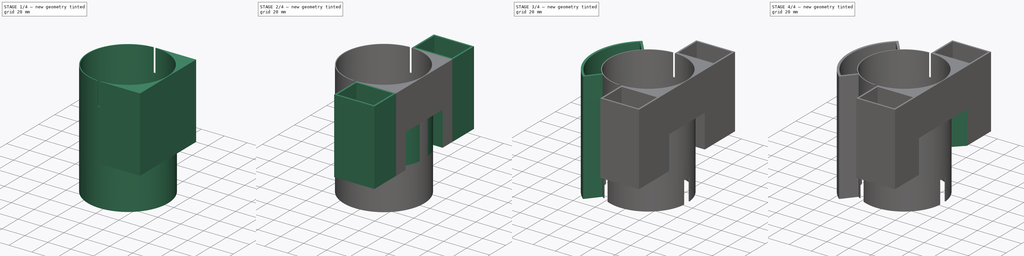
[diagram: build sequence overview — one tinted view per stage of 4, left to right]
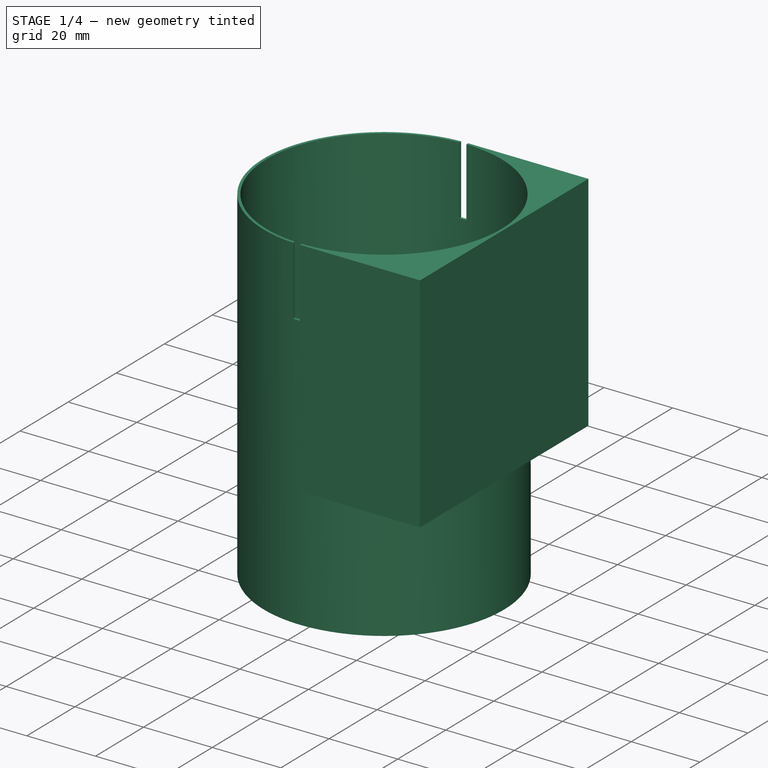
[diagram: stage 1 of 4 — iso view after this stage's code; geometry added in this stage tinted green]
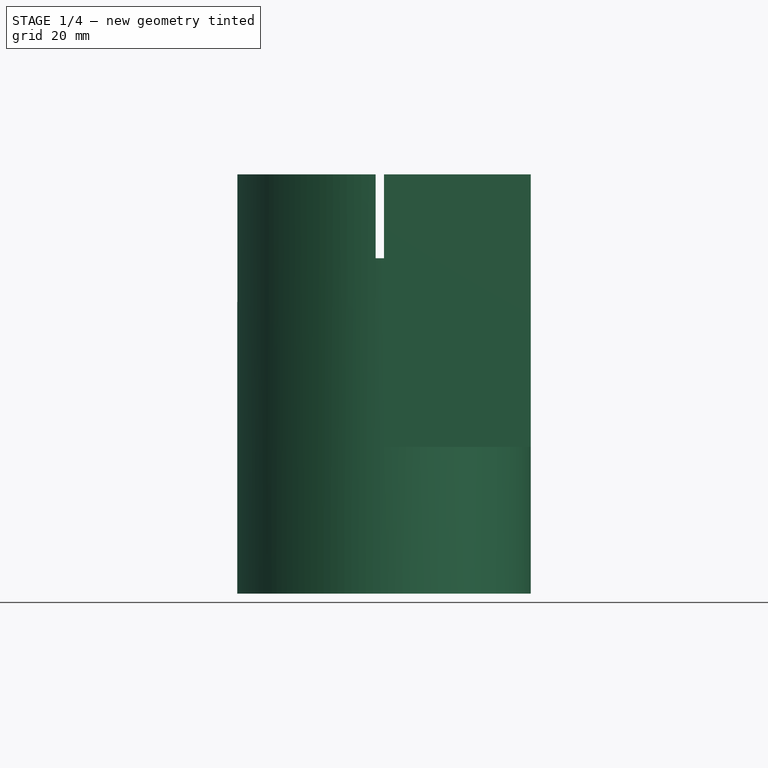
[diagram: stage 1 of 4 — front view after this stage's code; geometry added in this stage tinted green]
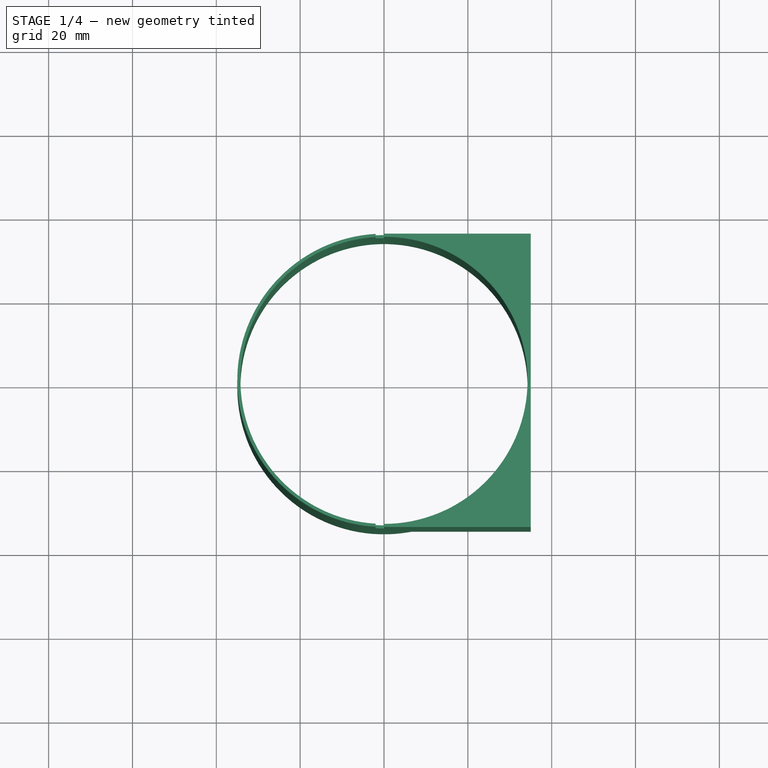
[diagram: stage 1 of 4 — top view after this stage's code; geometry added in this stage tinted green]
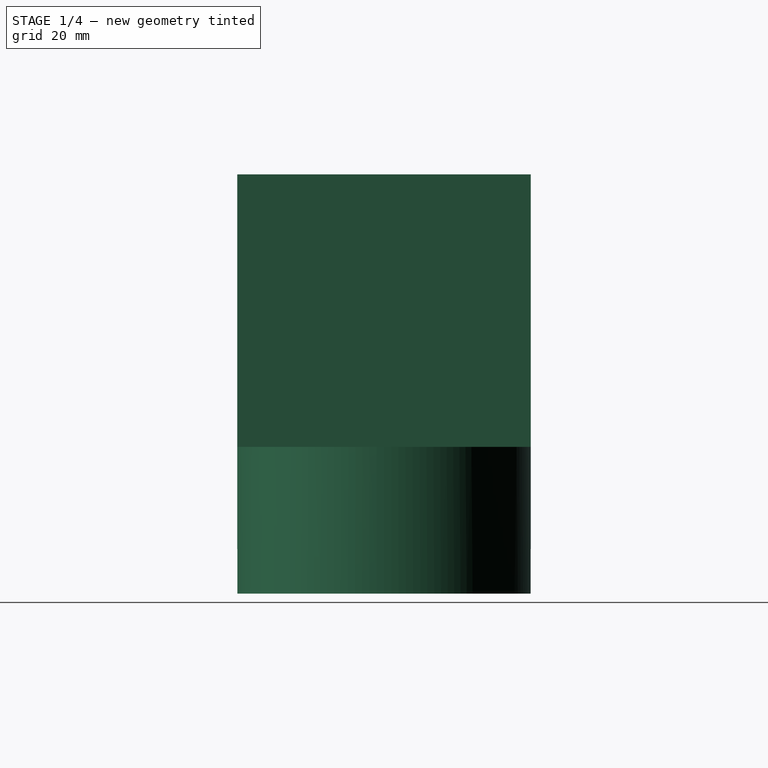
[diagram: stage 1 of 4 — right view after this stage's code; geometry added in this stage tinted green]
FCSTD DOCUMENT  (FreeCAD 0.20R29603 (Git))
Label: Frame
License: All rights reserved
LicenseURL: http://en.wikipedia.org/wiki/All_rights_reserved
objects: Sketcher::SketchObject×10, PartDesign::Pad×5, PartDesign::Pocket×5, PartDesign::Chamfer×2, PartDesign::Body×1
note: 35 computed .brp shape members not serialized (recipe doc carries the construction recipe); baked Part::Feature solids carry a one-line shape summary decoded from their .brp

FEATURE [Sketcher::SketchObject] Sketch
  FullyConstrained = true
  sketch-geometry (2):
    g0: Circle CenterX=0 CenterY=0 CenterZ=0 NormalX=0 NormalY=0 NormalZ=1 AngleXU=0 Radius=34.25
    g1: Circle CenterX=0 CenterY=0 CenterZ=0 NormalX=0 NormalY=0 NormalZ=1 AngleXU=0 Radius=35
  constraints (4):
    c: Coincident(g0,g-1)
    c: Diameter(g0) = 68.5
    c: Coincident(g1,g0)
    c: Diameter(g1) = 70
FEATURE [PartDesign::Pad] Pad  label="Cylinder"
  Direction = (0,0,1)
  Length = 100
  Length2 = 10
  Profile = -> Sketch
  ReferenceAxis = -> Sketch [N_Axis]
  Type = 0
FEATURE [Sketcher::SketchObject] Sketch002
  FullyConstrained = true
  MapMode = 5
  Placement = pos=(0,0,100) rot=(0,0,1;0rad)
  sketch-geometry (5):
    g0: LineSegment StartX=0 StartY=36 StartZ=0 EndX=-2 EndY=36 EndZ=0
    g1: LineSegment StartX=-2 StartY=36 StartZ=0 EndX=-2 EndY=-36 EndZ=0
    g2: LineSegment StartX=-2 StartY=-36 StartZ=0 EndX=0 EndY=-36 EndZ=0
    g3: LineSegment StartX=0 StartY=-36 StartZ=0 EndX=0 EndY=36 EndZ=0
    g4: GeomPoint X=0 Y=0 Z=0
  constraints (13):
    c: Coincident(g0,g1)
    c: Coincident(g1,g2)
    c: Coincident(g2,g3)
    c: Coincident(g3,g0)
    c: Horizontal(g0)
    c: Horizontal(g2)
    c: Vertical(g1)
    c: Vertical(g3)
    c: PointOnObject(g0,g-2)
    c: DistanceX(g0,g0) = 2
    c: DistanceY(g3,g3) = 72
    c: Symmetric(g2,g0,g4)
    c: DistanceY(g4,g-1) = 0
FEATURE [PartDesign::Pocket] Pocket  label="Attatcher"
  BaseFeature = -> Pad
  Direction = (0,0,-1)
  Length = 20
  Length2 = 5
  Profile = -> Sketch002
  ReferenceAxis = -> Sketch002 [N_Axis]
  Type = 0
FEATURE [Sketcher::SketchObject] Sketch003
  FullyConstrained = true
  MapMode = 5
  Placement = pos=(0,0,100) rot=(0,0,1;0rad)
  Support = -> [Pocket]
  sketch-geometry (4):
    g0: LineSegment StartX=-6.4e-15 StartY=-35 StartZ=0 EndX=35 EndY=-35 EndZ=0
    g1: LineSegment StartX=35 StartY=-35 StartZ=0 EndX=35 EndY=35 EndZ=0
    g2: LineSegment StartX=35 StartY=35 StartZ=0 EndX=1.42e-14 EndY=35 EndZ=0
    g3: ArcOfCircle CenterX=0 CenterY=0 CenterZ=0 NormalX=0 NormalY=0 NormalZ=1 AngleXU=0 Radius=35 StartAngle=4.71239 EndAngle=7.85398
  constraints (12):
    c: PointOnObject(g0,g-2)
    c: DistanceY(g0,g-1) = 35
    c: Horizontal(g0)
    c: DistanceX(g0,g0) = 35
    c: Coincident(g1,g0)
    c: Vertical(g1)
    c: DistanceY(g1,g1) = 70
    c: Coincident(g2,g1)
    c: PointOnObject(g2,g-2)
    c: Coincident(g3,g-1)
    c: Coincident(g3,g2)
    c: Coincident(g3,g0)
FEATURE [PartDesign::Pad] Pad001  label="FCMount"
  BaseFeature = -> Pocket
  Direction = (0,0,1)
  Length = 65
  Length2 = 10
  Profile = -> Sketch003
  ReferenceAxis = -> Sketch003 [N_Axis]
  Reversed = true
  Type = 0
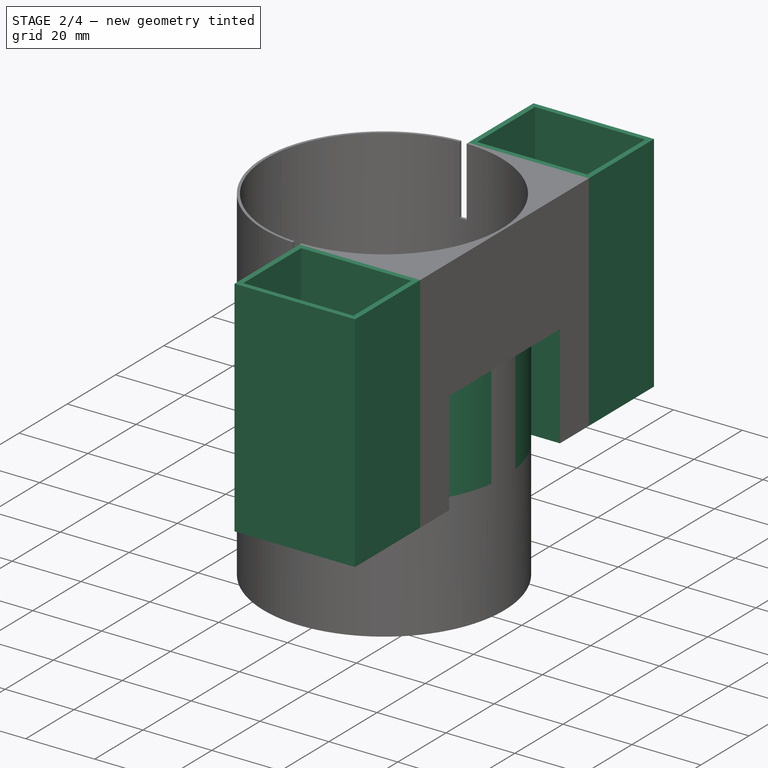
[diagram: stage 2 of 4 — iso view after this stage's code; geometry added in this stage tinted green]
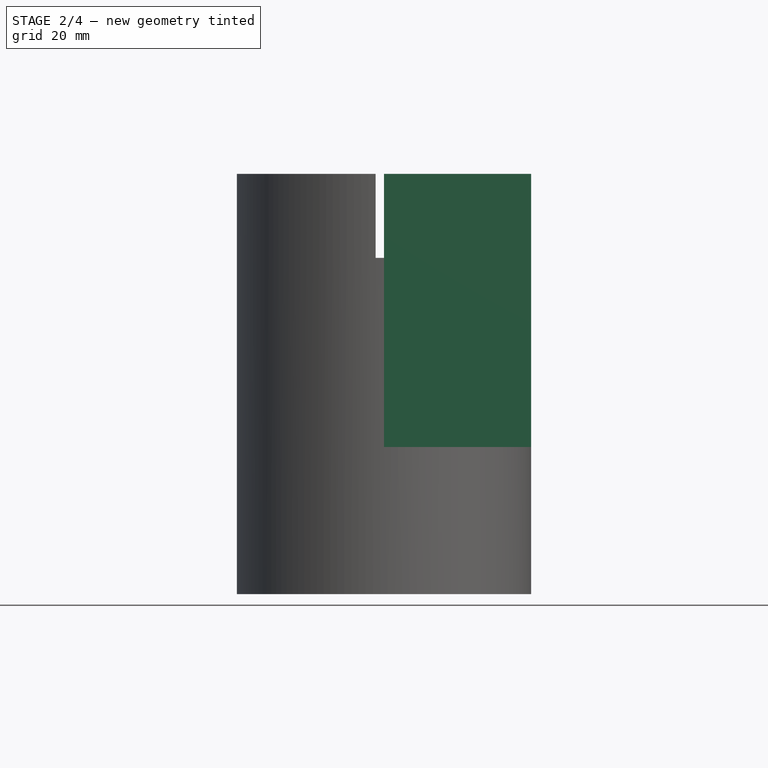
[diagram: stage 2 of 4 — front view after this stage's code; geometry added in this stage tinted green]
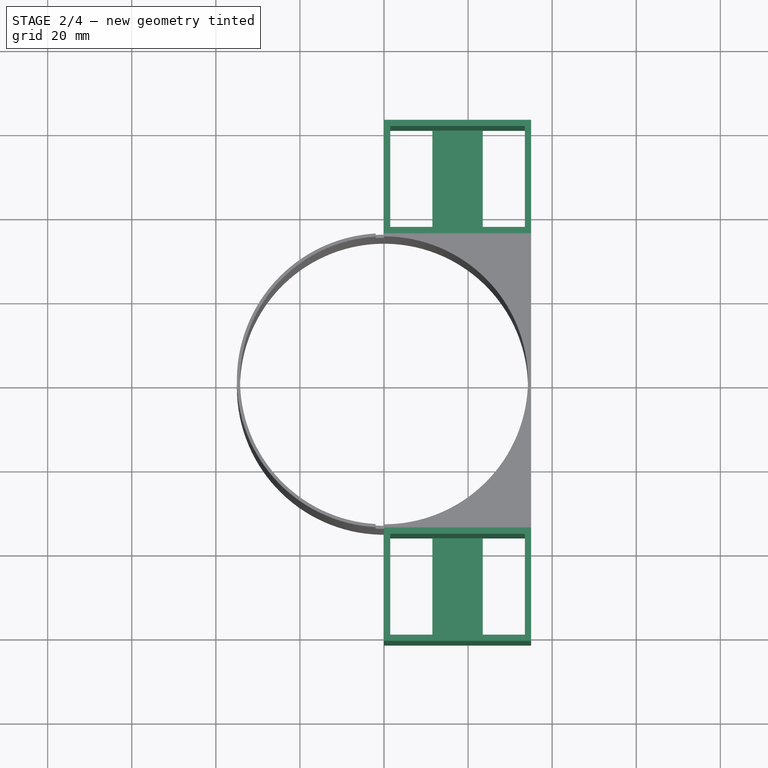
[diagram: stage 2 of 4 — top view after this stage's code; geometry added in this stage tinted green]
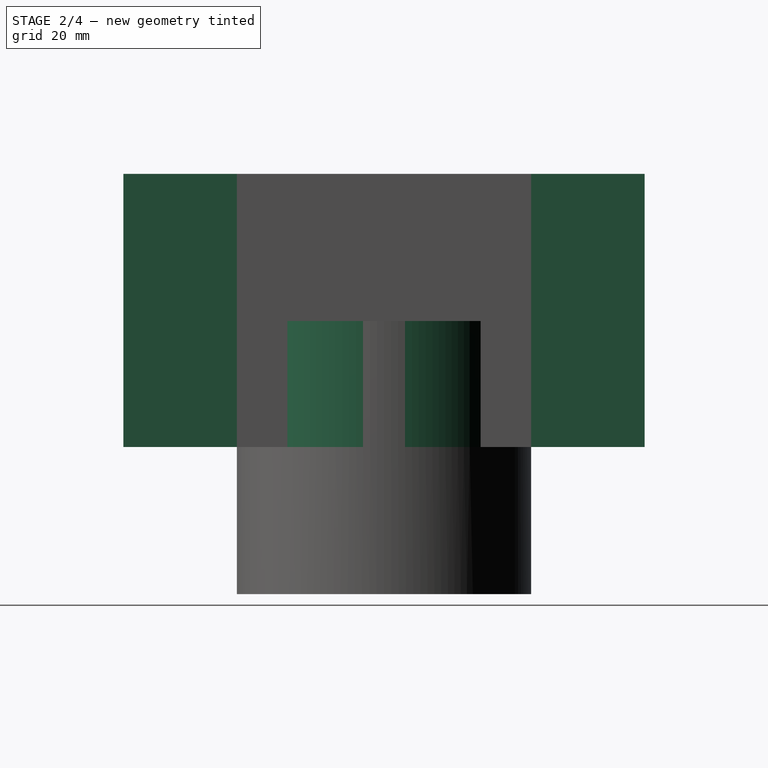
[diagram: stage 2 of 4 — right view after this stage's code; geometry added in this stage tinted green]
FEATURE [Sketcher::SketchObject] Sketch004
  FullyConstrained = false
  MapMode = 5
  Placement = pos=(0,0,35) rot=(1,0,0;3.14159rad)
  Support = -> [Pad001]
  sketch-geometry (4):
    g0: LineSegment StartX=35.0018 StartY=23 StartZ=0 EndX=35.0018 EndY=-23 EndZ=0
    g1: LineSegment StartX=35.0018 StartY=23 StartZ=0 EndX=26.3818 EndY=23 EndZ=0
    g2: LineSegment StartX=35.0018 StartY=-23 StartZ=0 EndX=26.3818 EndY=-23 EndZ=0
    g3: ArcOfCircle CenterX=0 CenterY=0 CenterZ=0 NormalX=0 NormalY=0 NormalZ=1 AngleXU=0 Radius=35 StartAngle=5.56616 EndAngle=7.00021
  constraints (10):
    c: Vertical(g0)
    c: DistanceY(g0,g0) = 46
    c: Coincident(g1,g0)
    c: Horizontal(g1)
    c: Coincident(g2,g0)
    c: Horizontal(g2)
    c: Distance(g-1,g1) = 35
    c: Coincident(g3,g-1)
    c: Coincident(g3,g1)
    c: Coincident(g3,g2)
FEATURE [PartDesign::Pocket] Pocket001  label="BATMount"
  BaseFeature = -> Pad001
  Direction = (0,0,1)
  Length = 30
  Length2 = 5
  Profile = -> Sketch004
  ReferenceAxis = -> Sketch004 [N_Axis]
  Type = 0
FEATURE [Sketcher::SketchObject] Sketch008
  FullyConstrained = false
  MapMode = 5
  Placement = pos=(0,0,0) rot=(1,0,0;3.14159rad)
  sketch-geometry (10):
    g0: LineSegment StartX=-22.4976 StartY=26.8116 StartZ=0 EndX=-32.1394 EndY=38.3022 EndZ=0
    g1: LineSegment StartX=-22.4976 StartY=-26.8116 StartZ=0 EndX=-32.1394 EndY=-38.3022 EndZ=0
    g2: ArcOfCircle CenterX=0 CenterY=0 CenterZ=0 NormalX=0 NormalY=0 NormalZ=1 AngleXU=0 Radius=50 StartAngle=2.26893 EndAngle=4.01426
    g3: GeomPoint X=-30.8538 Y=36.7701 Z=0
    g4: ArcOfCircle CenterX=0 CenterY=0 CenterZ=0 NormalX=0 NormalY=0 NormalZ=1 AngleXU=0 Radius=48 StartAngle=2.3106 EndAngle=3.97259
    g5: GeomPoint X=-22.4976 Y=26.8116 Z=0
    g6: ArcOfCircle CenterX=0 CenterY=0 CenterZ=0 NormalX=0 NormalY=0 NormalZ=1 AngleXU=0 Radius=35 StartAngle=2.26893 EndAngle=2.32609
    g7: LineSegment StartX=-32.3588 StartY=35.4529 StartZ=0 EndX=-23.9926 EndY=25.4825 EndZ=0
    g8: LineSegment StartX=-32.3588 StartY=-35.4529 StartZ=0 EndX=-23.9926 EndY=-25.4825 EndZ=0
    g9: ArcOfCircle CenterX=0 CenterY=0 CenterZ=0 NormalX=0 NormalY=0 NormalZ=1 AngleXU=0 Radius=35 StartAngle=3.9571 EndAngle=4.01426
  constraints (23):
    c: Angle(g-1,g0) = 2.26893
    c: Angle(g1,g-1) = 2.26893
    c: Coincident(g2,g-1)
    c: Coincident(g2,g0)
    c: Coincident(g2,g1)
    c: PointOnObject(g3,g0)
    c: Distance(g3,g-1) = 48
    c: Coincident(g4,g-1)
    c: PointOnObject(g5,g0)
    c: Distance(g5,g-1) = 35
    c: Coincident(g6,g-1)
    c: Coincident(g6,g5)
    c: Parallel(g0,g7)
    c: Distance(g3,g7) = 2
    c: Parallel(g8,g1)
    c: PointOnObject(g0,g6)
    c: Coincident(g1,g9)
    c: Equal(g6,g9)
    c: Coincident(g6,g7)
    c: Coincident(g9,g8)
    c: Coincident(g6,g9)
    c: Coincident(g4,g8)
    c: Coincident(g4,g7)
FEATURE [Sketcher::SketchObject] Sketch009
  FullyConstrained = true
  MapMode = 5
  Placement = pos=(0,0,0) rot=(1,0,0;3.14159rad)
  sketch-geometry (6):
    g0: GeomPoint X=-34 Y=0 Z=0
    g1: LineSegment StartX=-37 StartY=7 StartZ=0 EndX=-37 EndY=-7 EndZ=0
    g2: LineSegment StartX=-37 StartY=-7 StartZ=0 EndX=-31 EndY=-7 EndZ=0
    g3: LineSegment StartX=-31 StartY=-7 StartZ=0 EndX=-31 EndY=7 EndZ=0
    g4: LineSegment StartX=-31 StartY=7 StartZ=0 EndX=-37 EndY=7 EndZ=0
    g5: GeomPoint X=-34 Y=0 Z=0
  constraints (14):
    c: PointOnObject(g0,g-1)
    c: DistanceX(g0,g-1) = 34
    c: Coincident(g1,g2)
    c: Coincident(g2,g3)
    c: Coincident(g3,g4)
    c: Coincident(g4,g1)
    c: Horizontal(g2)
    c: Horizontal(g4)
    c: Vertical(g1)
    c: Vertical(g3)
    c: Symmetric(g2,g1,g5)
    c: Coincident(g5,g0)
    c: DistanceX(g2,g2) = 6
    c: DistanceY(g3,g3) = 14
FEATURE [Sketcher::SketchObject] Sketch005
  FullyConstrained = true
  MapMode = 5
  Placement = pos=(0,0,35) rot=(1,0,0;3.14159rad)
  Support = -> [Pocket001]
  sketch-geometry (22):
    g0: GeomPoint X=0 Y=35 Z=0
    g1: LineSegment StartX=0 StartY=35 StartZ=0 EndX=35 EndY=35 EndZ=0
    g2: LineSegment StartX=35 StartY=35 StartZ=0 EndX=35 EndY=62 EndZ=0
    g3: LineSegment StartX=35 StartY=62 StartZ=0 EndX=0 EndY=62 EndZ=0
    g4: LineSegment StartX=0 StartY=62 StartZ=0 EndX=0 EndY=35 EndZ=0
    g5: GeomPoint X=17.5 Y=48.5 Z=0
    g6: LineSegment StartX=1.5 StartY=60.5 StartZ=0 EndX=1.5 EndY=36.5 EndZ=0
    g7: LineSegment StartX=1.5 StartY=36.5 StartZ=0 EndX=33.5 EndY=36.5 EndZ=0
    g8: LineSegment StartX=33.5 StartY=36.5 StartZ=0 EndX=33.5 EndY=60.5 EndZ=0
    g9: LineSegment StartX=33.5 StartY=60.5 StartZ=0 EndX=1.5 EndY=60.5 EndZ=0
    g10: GeomPoint X=17.5 Y=48.5 Z=0
    g11: GeomPoint X=17.5 Y=-48.5 Z=0
    g12: LineSegment StartX=33.5 StartY=-60.5 StartZ=0 EndX=33.5 EndY=-36.5 EndZ=0
    g13: LineSegment StartX=33.5 StartY=-36.5 StartZ=0 EndX=1.5 EndY=-36.5 EndZ=0
    g14: LineSegment StartX=1.5 StartY=-36.5 StartZ=0 EndX=1.5 EndY=-60.5 EndZ=0
    g15: LineSegment StartX=1.5 StartY=-60.5 StartZ=0 EndX=33.5 EndY=-60.5 EndZ=0
    g16: GeomPoint X=17.5 Y=-48.5 Z=0
    g17: LineSegment StartX=35 StartY=-62 StartZ=0 EndX=35 EndY=-35 EndZ=0
    g18: LineSegment StartX=35 StartY=-35 StartZ=0 EndX=0 EndY=-35 EndZ=0
    g19: LineSegment StartX=0 StartY=-35 StartZ=0 EndX=0 EndY=-62 EndZ=0
    g20: LineSegment StartX=0 StartY=-62 StartZ=0 EndX=35 EndY=-62 EndZ=0
    g21: GeomPoint X=17.5 Y=-48.5 Z=0
  constraints (52):
    c: PointOnObject(g0,g-2)
    c: DistanceY(g-1,g0) = 35
    c: Coincident(g1,g2)
    c: Coincident(g2,g3)
    c: Coincident(g3,g4)
    c: Coincident(g4,g1)
    c: Horizontal(g1)
    c: Horizontal(g3)
    c: Vertical(g2)
    c: Vertical(g4)
    c: Coincident(g1,g0)
    c: DistanceX(g3,g3) = 35
    c: DistanceY(g4,g4) = 27
    c: Symmetric(g3,g1,g5)
    c: Coincident(g6,g7)
    c: Coincident(g7,g8)
    c: Coincident(g8,g9)
    c: Coincident(g9,g6)
    c: Horizontal(g7)
    c: Horizontal(g9)
    c: Vertical(g6)
    c: Vertical(g8)
    c: Symmetric(g7,g6,g10)
    c: Coincident(g10,g5)
    c: DistanceY(g6,g6) = 24
    c: DistanceX(g9,g9) = 32
    c: Vertical(g11,g5)
    c: DistanceY(g11,g5) = 97
    c: Coincident(g12,g13)
    c: Coincident(g13,g14)
    c: Coincident(g14,g15)
    c: Coincident(g15,g12)
    c: Horizontal(g13)
    c: Horizontal(g15)
    c: Vertical(g12)
    c: Vertical(g14)
    c: Symmetric(g13,g12,g16)
    c: Coincident(g16,g11)
    c: Coincident(g17,g18)
    c: Coincident(g18,g19)
    c: Coincident(g19,g20)
    c: Coincident(g20,g17)
    c: Horizontal(g18)
    c: Horizontal(g20)
    c: Vertical(g17)
    c: Vertical(g19)
    c: Symmetric(g18,g17,g21)
    c: Coincident(g21,g11)
    c: PointOnObject(g18,g-2)
    c: DistanceY(g19,g19) = 27
    c: DistanceY(g14,g14) = 24
    c: DistanceX(g13,g13) = 32
FEATURE [PartDesign::Pad] Pad002
  BaseFeature = -> Pocket001
  Direction = (0,0,-1)
  Length = 65
  Length2 = 10
  Profile = -> Sketch005
  ReferenceAxis = -> Sketch005 [N_Axis]
  Reversed = true
  Type = 0
FEATURE [Sketcher::SketchObject] Sketch006
  FullyConstrained = true
  MapMode = 5
  Placement = pos=(0,0,35) rot=(1,0,0;3.14159rad)
  Support = -> [Pad002]
  sketch-geometry (13):
    g0: GeomPoint X=17.5 Y=0 Z=0
    g1: GeomPoint X=17.5 Y=48.5 Z=0
    g2: GeomPoint X=17.5 Y=-48.5 Z=0
    g3: LineSegment StartX=11.5 StartY=60.5 StartZ=0 EndX=11.5 EndY=36.5 EndZ=0
    g4: LineSegment StartX=11.5 StartY=36.5 StartZ=0 EndX=23.5 EndY=36.5 EndZ=0
    g5: LineSegment StartX=23.5 StartY=36.5 StartZ=0 EndX=23.5 EndY=60.5 EndZ=0
    g6: LineSegment StartX=23.5 StartY=60.5 StartZ=0 EndX=11.5 EndY=60.5 EndZ=0
    g7: GeomPoint X=17.5 Y=48.5 Z=0
    g8: LineSegment StartX=11.5 StartY=-36.5 StartZ=0 EndX=11.5 EndY=-60.5 EndZ=0
    g9: LineSegment StartX=11.5 StartY=-60.5 StartZ=0 EndX=23.5 EndY=-60.5 EndZ=0
    g10: LineSegment StartX=23.5 StartY=-60.5 StartZ=0 EndX=23.5 EndY=-36.5 EndZ=0
    g11: LineSegment StartX=23.5 StartY=-36.5 StartZ=0 EndX=11.5 EndY=-36.5 EndZ=0
    g12: GeomPoint X=17.5 Y=-48.5 Z=0
  constraints (30):
    c: PointOnObject(g0,g-1)
    c: DistanceX(g-1,g0) = 17.5
    c: Vertical(g1,g2)
    c: Vertical(g2,g0)
    c: DistanceY(g0,g1) = 48.5
    c: DistanceY(g2,g0) = 48.5
    c: Coincident(g3,g4)
    c: Coincident(g4,g5)
    c: Coincident(g5,g6)
    c: Coincident(g6,g3)
    c: Horizontal(g4)
    c: Horizontal(g6)
    c: Vertical(g3)
    c: Vertical(g5)
    c: Symmetric(g4,g3,g7)
    c: Coincident(g7,g1)
    c: DistanceY(g3,g3) = 24
    c: DistanceX(g6,g6) = 12
    c: Coincident(g8,g9)
    c: Coincident(g9,g10)
    c: Coincident(g10,g11)
    c: Coincident(g11,g8)
    c: Horizontal(g9)
    c: Horizontal(g11)
    c: Vertical(g8)
    c: Vertical(g10)
    c: Symmetric(g9,g8,g12)
    c: Coincident(g12,g2)
    c: DistanceX(g9,g9) = 12
    c: DistanceY(g8,g8) = 24
FEATURE [PartDesign::Pad] Pad003
  BaseFeature = -> Pad002
  Direction = (0,0,-1)
  Length = 3
  Length2 = 10
  Profile = -> Sketch006
  ReferenceAxis = -> Sketch006 [N_Axis]
  Reversed = true
  Type = 0
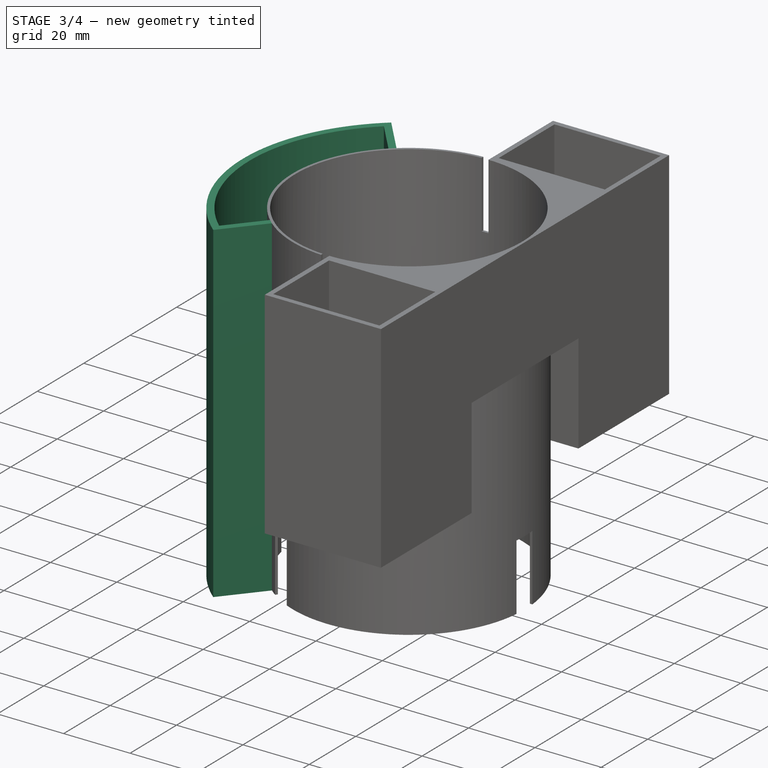
[diagram: stage 3 of 4 — iso view after this stage's code; geometry added in this stage tinted green]
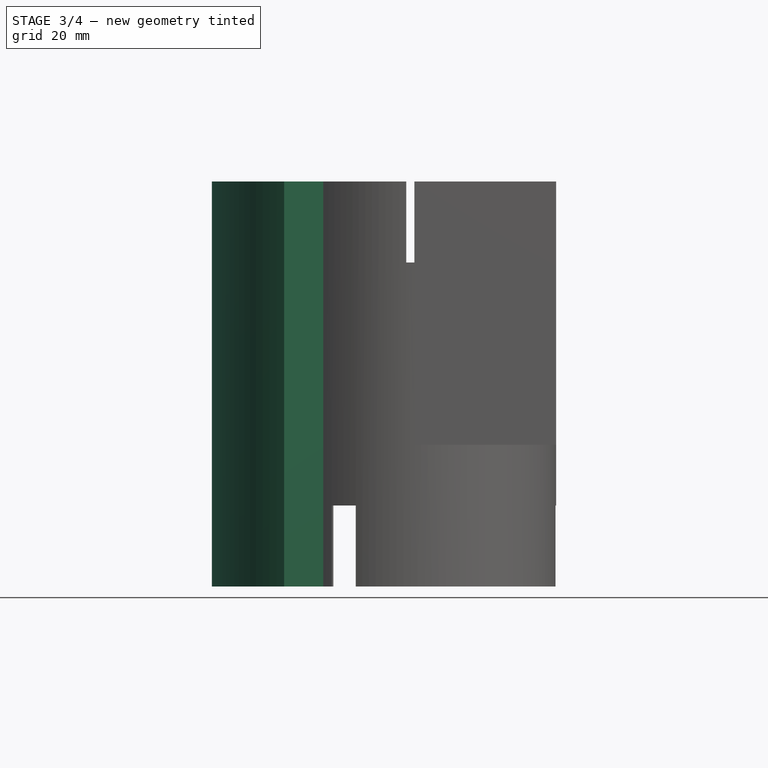
[diagram: stage 3 of 4 — front view after this stage's code; geometry added in this stage tinted green]
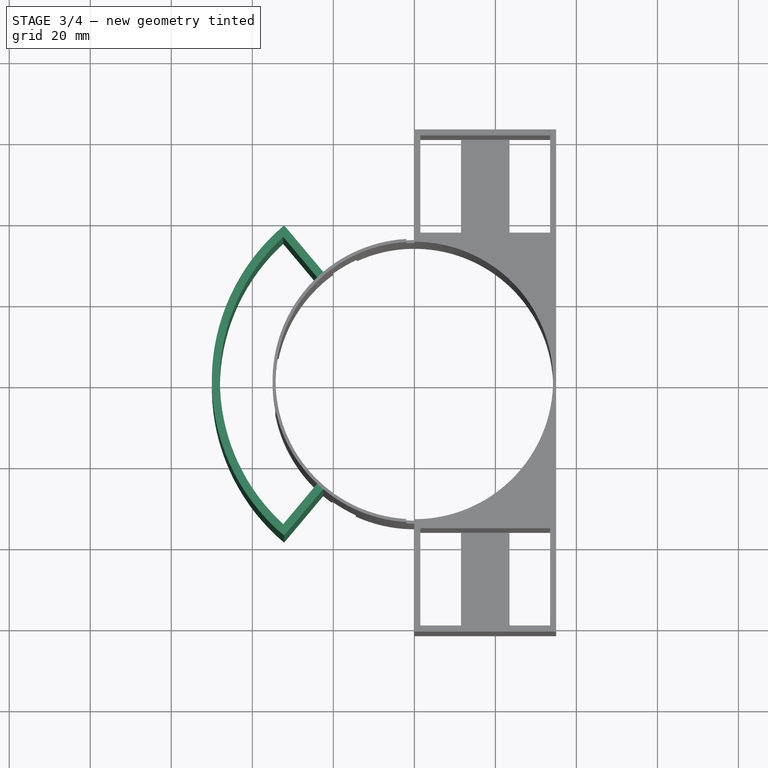
[diagram: stage 3 of 4 — top view after this stage's code; geometry added in this stage tinted green]
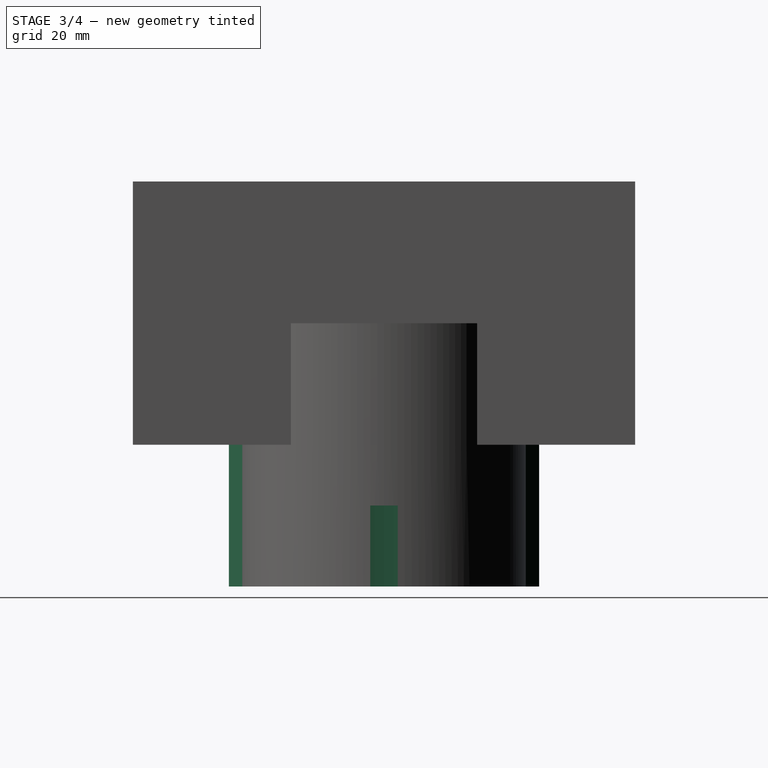
[diagram: stage 3 of 4 — right view after this stage's code; geometry added in this stage tinted green]
FEATURE [Sketcher::SketchObject] Sketch007
  FullyConstrained = false
  MapMode = 5
  Placement = pos=(0,0,0) rot=(1,0,0;3.14159rad)
  Support = -> [Pad003]
  sketch-geometry (16):
    g0: GeomPoint X=33.75 Y=0 Z=0
    g1: LineSegment StartX=30.35 StartY=-3.4 StartZ=0 EndX=30.35 EndY=3.4 EndZ=0
    g2: LineSegment StartX=30.35 StartY=3.4 StartZ=0 EndX=37.15 EndY=3.4 EndZ=0
    g3: LineSegment StartX=37.15 StartY=3.4 StartZ=0 EndX=37.15 EndY=-3.4 EndZ=0
    g4: LineSegment StartX=37.15 StartY=-3.4 StartZ=0 EndX=30.35 EndY=-3.4 EndZ=0
    g5: GeomPoint X=33.75 Y=0 Z=0
    g6: LineSegment StartX=-21.5195 StartY=30.4728 StartZ=0 EndX=-18.1195 EndY=24.5839 EndZ=0
    g7: LineSegment StartX=-18.1195 StartY=24.5839 StartZ=0 EndX=-12.2305 EndY=27.9839 EndZ=0
    g8: LineSegment StartX=-12.2305 StartY=27.9839 StartZ=0 EndX=-15.6305 EndY=33.8728 EndZ=0
    g9: LineSegment StartX=-15.6305 StartY=33.8728 StartZ=0 EndX=-21.5195 EndY=30.4728 EndZ=0
    g10: GeomPoint X=-16.875 Y=29.2284 Z=0
    g11: LineSegment StartX=-15.6305 StartY=-33.8728 StartZ=0 EndX=-12.2305 EndY=-27.9839 EndZ=0
    g12: LineSegment StartX=-12.2305 StartY=-27.9839 StartZ=0 EndX=-18.1195 EndY=-24.5839 EndZ=0
    g13: LineSegment StartX=-18.1195 StartY=-24.5839 StartZ=0 EndX=-21.5195 EndY=-30.4728 EndZ=0
    g14: LineSegment StartX=-21.5195 StartY=-30.4728 StartZ=0 EndX=-15.6305 EndY=-33.8728 EndZ=0
    g15: GeomPoint X=-16.875 Y=-29.2284 Z=0
  constraints (28):
    c: PointOnObject(g0,g-1)
    c: Coincident(g1,g2)
    c: Coincident(g2,g3)
    c: Coincident(g3,g4)
    c: Coincident(g4,g1)
    c: Horizontal(g2)
    c: Horizontal(g4)
    c: Vertical(g1)
    c: Vertical(g3)
    c: Symmetric(g2,g1,g5)
    c: Coincident(g5,g0)
    c: DistanceY(g1,g1) = 6.8
    c: DistanceX(g2,g2) = 6.8
    c: Distance(g-1,g0) = 33.75
    c: Coincident(g6,g7)
    c: Coincident(g7,g8)
    c: Coincident(g8,g9)
    c: Coincident(g9,g6)
    c: Symmetric(g7,g6,g10)
    c: Distance(g8) = 6.8
    c: Distance(g9) = 6.8
    c: Coincident(g11,g12)
    c: Coincident(g12,g13)
    c: Coincident(g13,g14)
    c: Coincident(g14,g11)
    c: Symmetric(g12,g11,g15)
    c: Distance(g12) = 6.8
    c: Distance(g13) = 6.8
FEATURE [PartDesign::Pocket] Pocket003
  BaseFeature = -> Pad003
  Direction = (0,0,1)
  Length = 70
  Length2 = 5
  Profile = -> Sketch009
  ReferenceAxis = -> Sketch009 [N_Axis]
  Type = 0
FEATURE [PartDesign::Pad] Pad004
  BaseFeature = -> Pocket003
  Direction = (0,0,-1)
  Length = 100
  Length2 = 10
  Profile = -> Sketch008
  ReferenceAxis = -> Sketch008 [N_Axis]
  Reversed = true
  Type = 0
FEATURE [PartDesign::Pocket] Pocket004
  BaseFeature = -> Pad004
  Direction = (0,0,1)
  Length = 20
  Length2 = 5
  Profile = -> Sketch007
  ReferenceAxis = -> Sketch007 [N_Axis]
  Type = 0
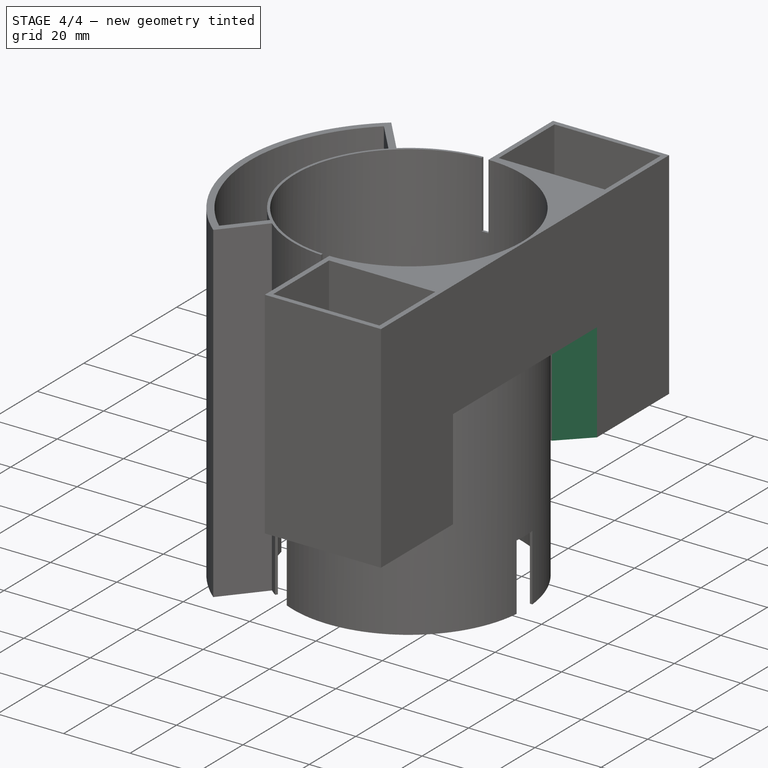
[diagram: stage 4 of 4 — iso view after this stage's code; geometry added in this stage tinted green]
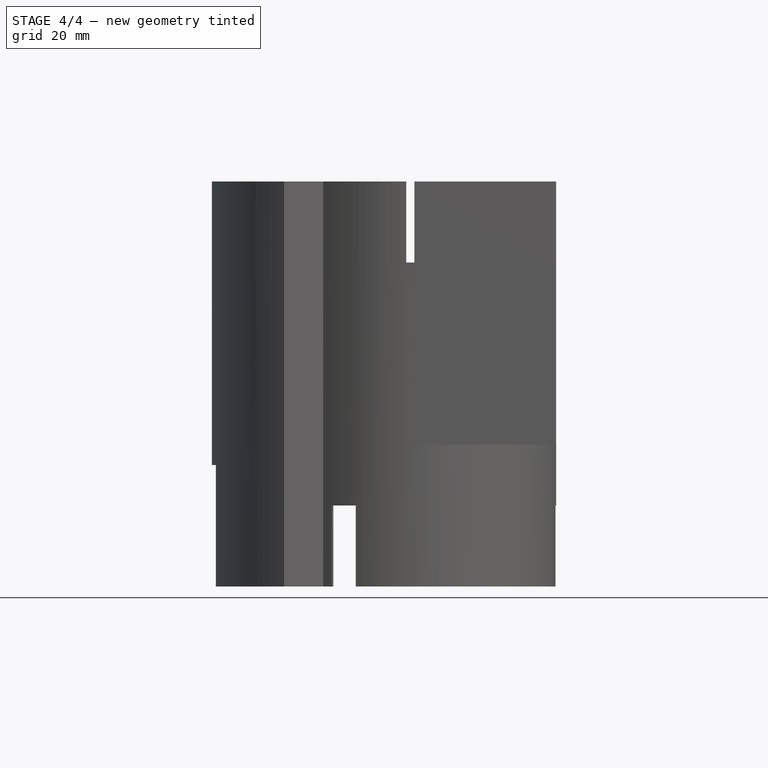
[diagram: stage 4 of 4 — front view after this stage's code; geometry added in this stage tinted green]
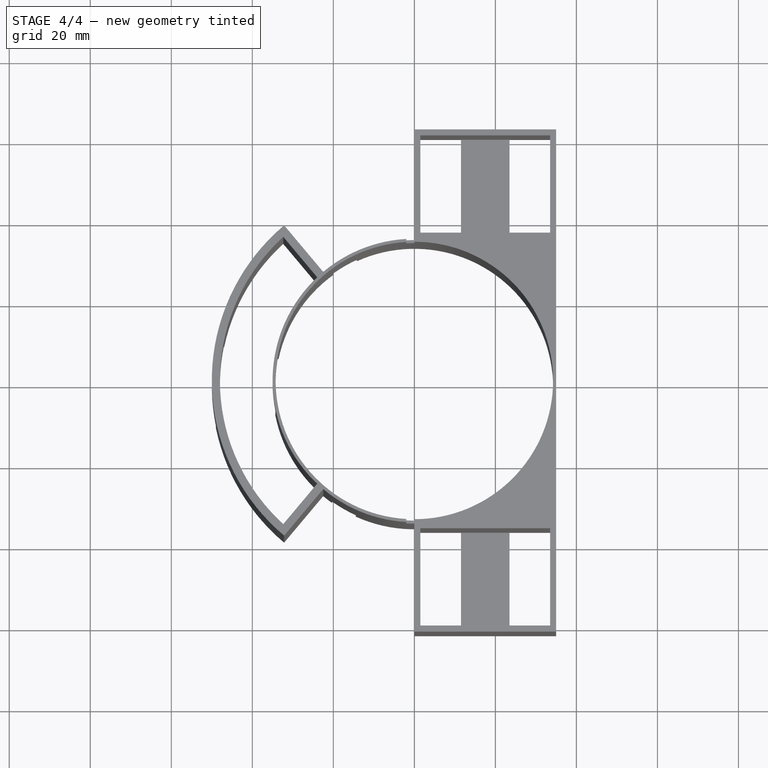
[diagram: stage 4 of 4 — top view after this stage's code; geometry added in this stage tinted green]
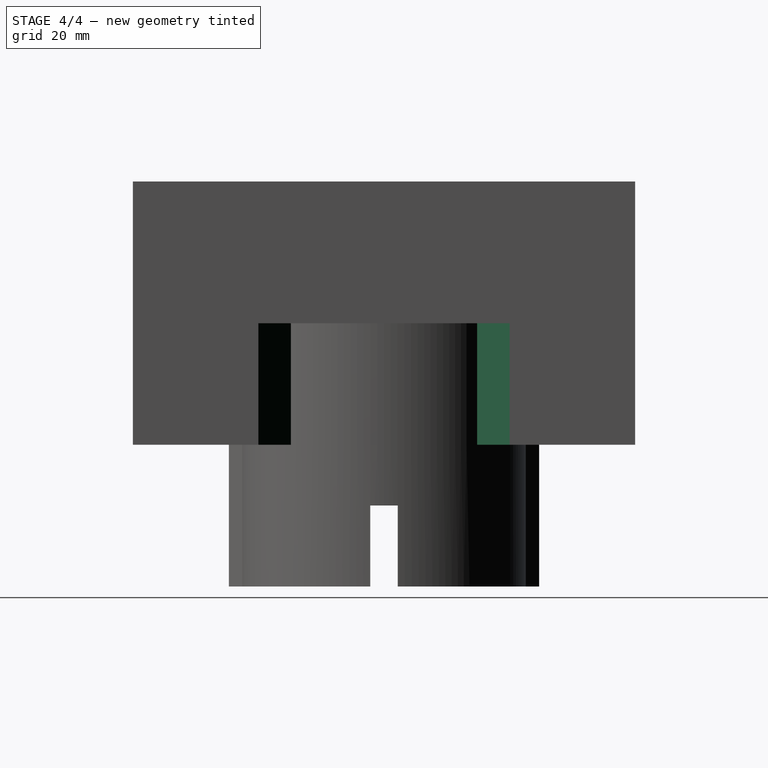
[diagram: stage 4 of 4 — right view after this stage's code; geometry added in this stage tinted green]
FEATURE [PartDesign::Chamfer] Chamfer
  Angle = 45
  Base = -> Pocket004 [Edge72]
  BaseFeature = -> Pocket004
  ChamferType = 0
  FlipDirection = false
  Size = 8
  Size2 = 1
  SupportTransform = false
  UseAllEdges = false
FEATURE [PartDesign::Chamfer] Chamfer001
  Angle = 45
  Base = -> Chamfer [Edge98]
  BaseFeature = -> Chamfer
  ChamferType = 0
  FlipDirection = false
  Size = 8
  Size2 = 1
  SupportTransform = false
  UseAllEdges = false
FEATURE [Sketcher::SketchObject] Sketch010
  FullyConstrained = false
  MapMode = 5
  Placement = pos=(0,0,0) rot=(1,0,0;3.14159rad)
  Support = -> [Chamfer001]
  sketch-geometry (6):
    g0: GeomPoint X=-50 Y=0 Z=0
    g1: LineSegment StartX=-40 StartY=-10 StartZ=0 EndX=-40 EndY=10 EndZ=0
    g2: LineSegment StartX=-40 StartY=10 StartZ=0 EndX=-60 EndY=10 EndZ=0
    g3: LineSegment StartX=-60 StartY=10 StartZ=0 EndX=-60 EndY=-10 EndZ=0
    g4: LineSegment StartX=-60 StartY=-10 StartZ=0 EndX=-40 EndY=-10 EndZ=0
    g5: GeomPoint X=-50 Y=0 Z=0
  constraints (12):
    c: PointOnObject(g0,g-1)
    c: Distance(g-1,g0) = 50
    c: Coincident(g1,g2)
    c: Coincident(g2,g3)
    c: Coincident(g3,g4)
    c: Coincident(g4,g1)
    c: Horizontal(g2)
    c: Horizontal(g4)
    c: Vertical(g1)
    c: Vertical(g3)
    c: Symmetric(g2,g1,g5)
    c: Coincident(g5,g0)
FEATURE [PartDesign::Pocket] Pocket005
  BaseFeature = -> Chamfer001
  Direction = (0,0,1)
  Length = 30
  Length2 = 5
  Profile = -> Sketch010
  ReferenceAxis = -> Sketch010 [N_Axis]
  Type = 0
FEATURE [PartDesign::Body] Body
  Group = -> [Sketch,Pad,Sketch002,Pocket,Sketch003,Pad001,Sketch004,Pocket001,Sketch005,Pad002,Sketch006,Pad003,Sketch007,Sketch008,Sketch009,Pocket003,Pad004,Pocket004,Chamfer,Chamfer001,Sketch010,Pocket005]
  Origin = -> Origin
  Tip = -> Pocket005
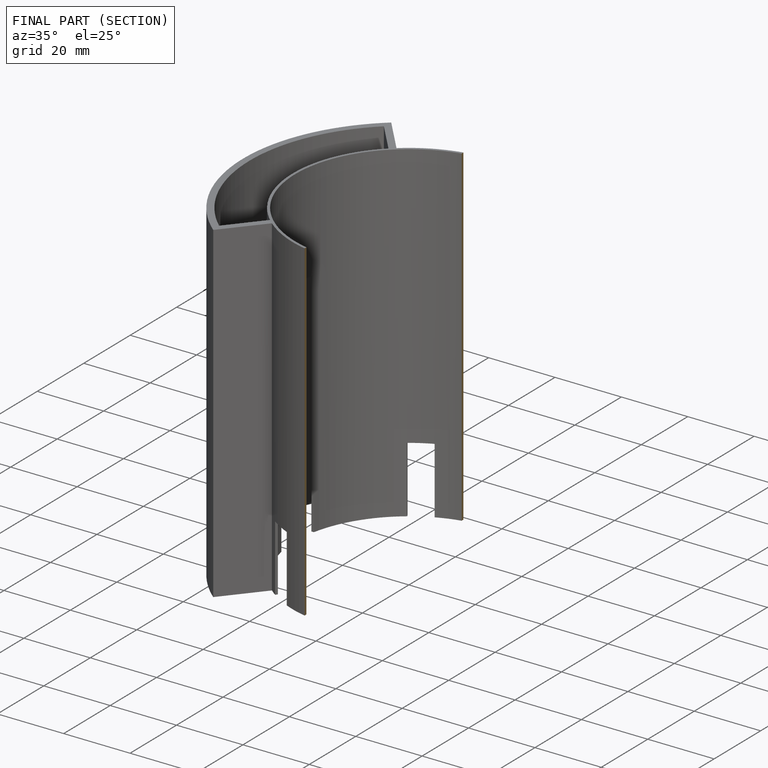
[diagram: finished part — half-section view (interior)]
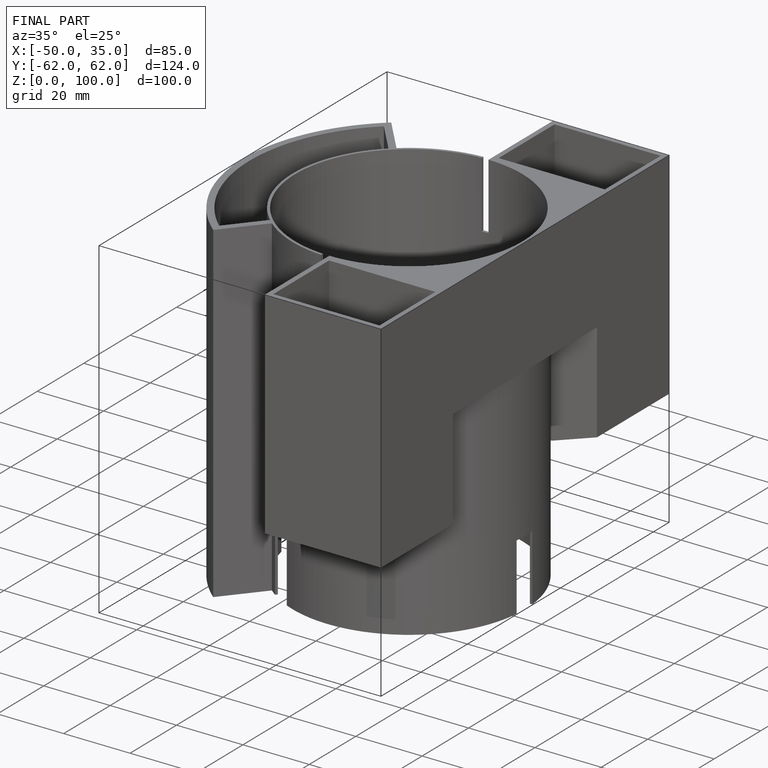
[diagram: finished part — iso view with bounding-box wireframe]
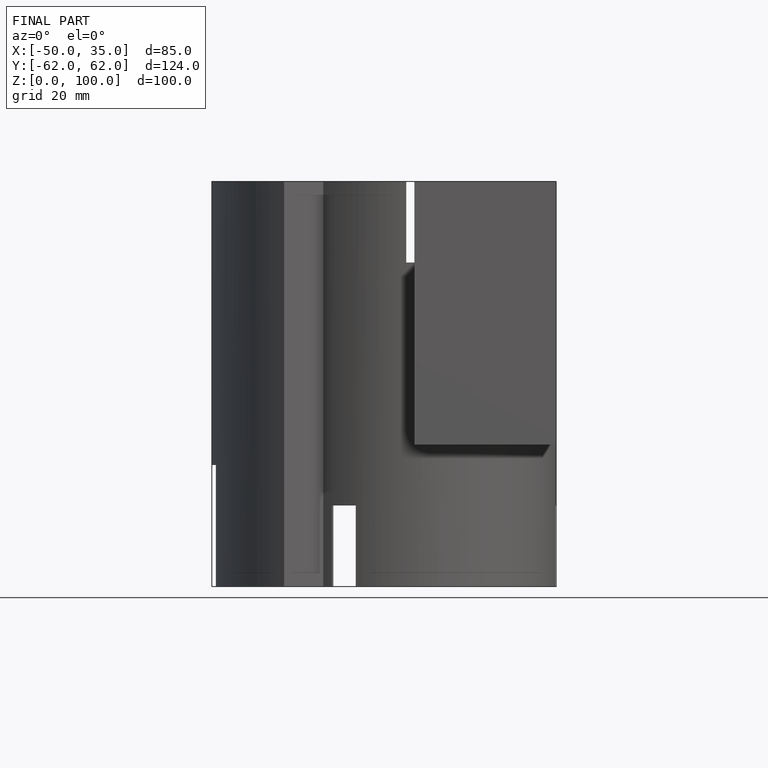
[diagram: finished part — front view with bounding-box wireframe]
